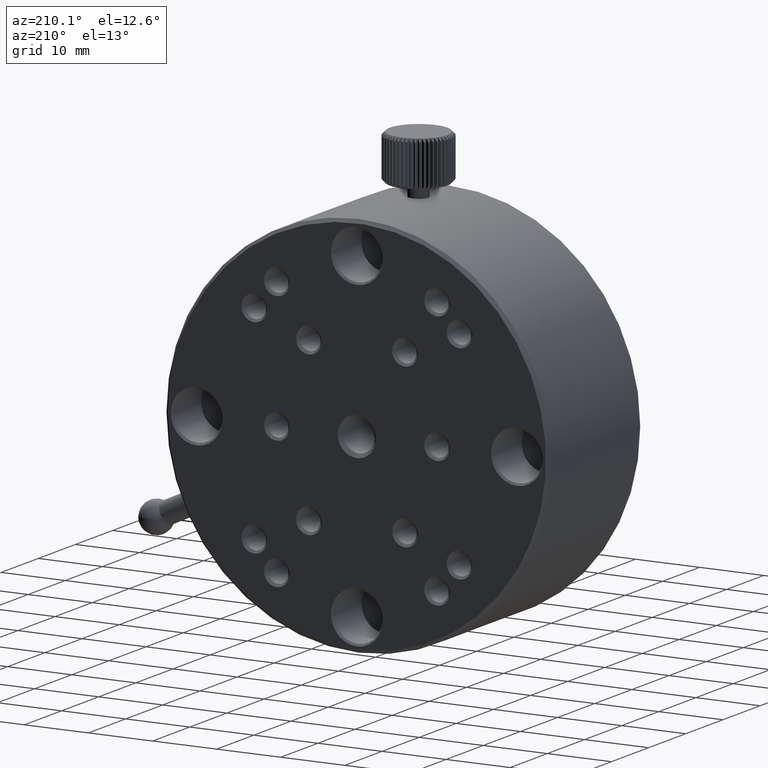
[diagram: clean part render]
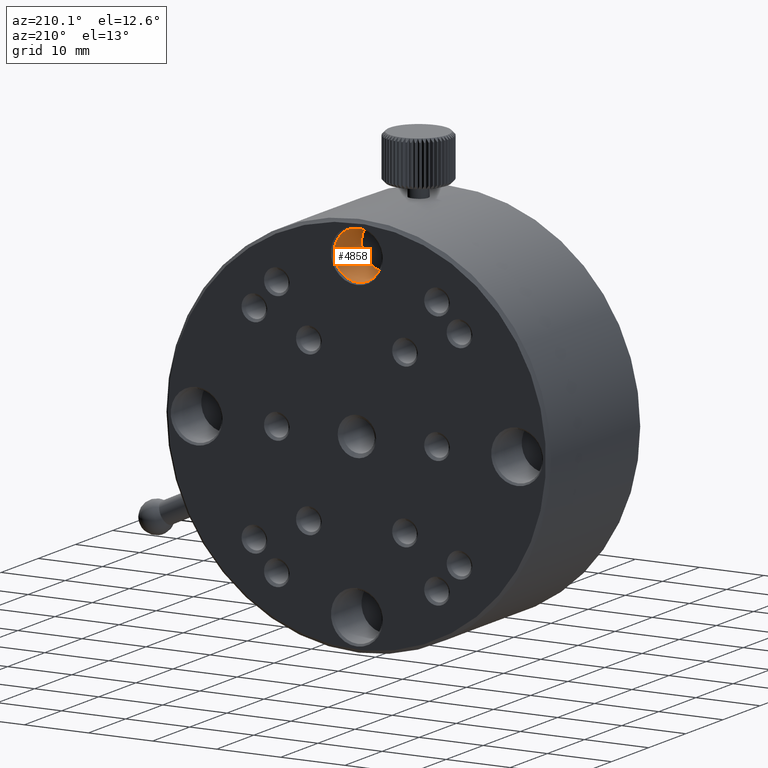
[diagram: same view with one face highlighted and labeled with its STEP entity id]
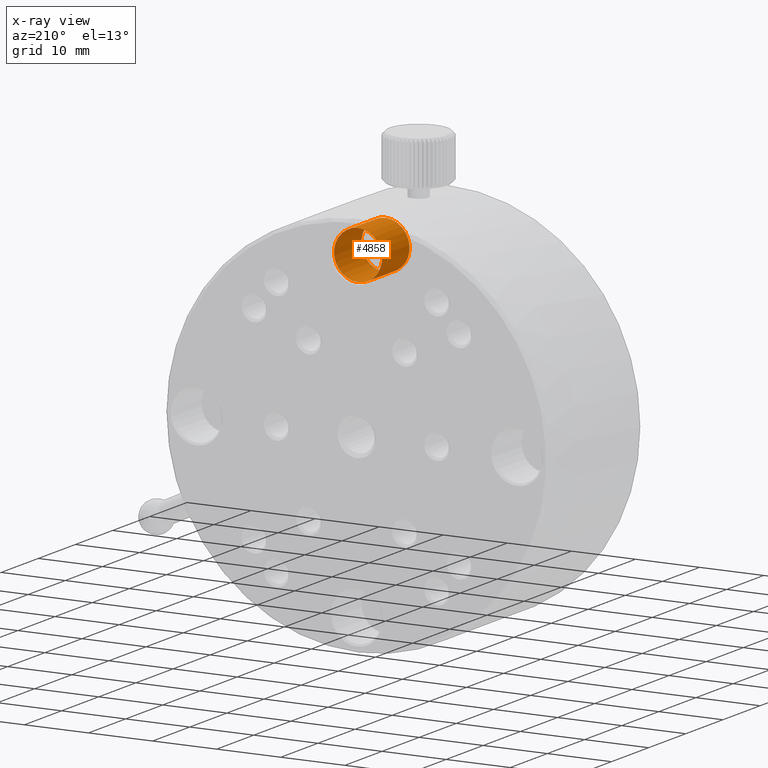
[diagram: x-ray of the same camera — body ghosted, the highlighted face saturated]
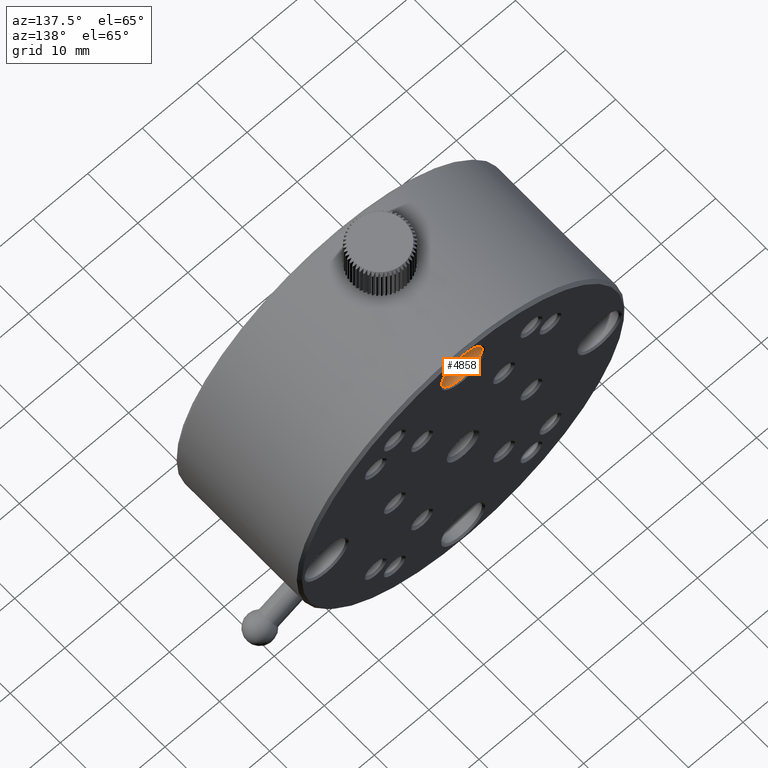
[diagram: same view with one face highlighted and labeled with its STEP entity id]
A machine part, auxiliary view. The second image highlights one B-rep face of the part: STEP entity #4858.
The next image is the same camera in x-ray: the body ghosted, the highlighted face saturated — about 0% of this face is hidden behind the body in this view.
A second angle (auxiliary view) of the same face is appended — the face is thin or edge-on in the first view.
In plain terms, the highlighted cylindrical surface (bore or boss wall) has radius 3.75 mm, axis along (0, -1, 0).
Its self-contained STEP definition (entity closure, byte-faithful):
#700 = FACE_OUTER_BOUND ( 'NONE', #2987, .T. ) ;
#891 = CARTESIAN_POINT ( 'NONE',  ( -3.469446951953609850E-15, 24.69999999999572537, 28.74999999988858690 ) ) ;
#1151 = DIRECTION ( 'NONE',  ( -0.000000000000000000, 1.000000000000000000, -0.000000000000000000 ) ) ;
#1913 = EDGE_CURVE ( 'NONE', #8188, #8188, #4010, .T. ) ;
#2522 = CIRCLE ( 'NONE', #9135, 3.750000000000000000 ) ;
#2682 = ORIENTED_EDGE ( 'NONE', *, *, #1913, .T. ) ;
#2912 = AXIS2_PLACEMENT_3D ( 'NONE', #3070, #8259, #6011 ) ;
#2987 = EDGE_LOOP ( 'NONE', ( #2682 ) ) ;
#3070 = CARTESIAN_POINT ( 'NONE',  ( -3.469446951953609850E-15, 17.00000000000000000, 25.00000000000000000 ) ) ;
#3116 = CARTESIAN_POINT ( 'NONE',  ( -3.469446951953609850E-15, 24.69999999999572537, 25.00000000000000000 ) ) ;
#4010 = CIRCLE ( 'NONE', #7082, 3.749999999888585567 ) ;
#4466 = DIRECTION ( 'NONE',  ( -0.000000000000000000, 1.000000000000000000, 0.000000000000000000 ) ) ;
#4858 = ADVANCED_FACE ( 'NONE', ( #700, #6558 ), #5964, .F. ) ;
#4945 = DIRECTION ( 'NONE',  ( 0.000000000000000000, 0.000000000000000000, -1.000000000000000000 ) ) ;
#5964 = CYLINDRICAL_SURFACE ( 'NONE', #2912, 3.750000000000000000 ) ;
#6011 = DIRECTION ( 'NONE',  ( 0.000000000000000000, 0.000000000000000000, -1.000000000000000000 ) ) ;
#6024 = VERTEX_POINT ( 'NONE', #8956 ) ;
#6558 = FACE_OUTER_BOUND ( 'NONE', #6725, .T. ) ;
#6725 = EDGE_LOOP ( 'NONE', ( #7891 ) ) ;
#7082 = AXIS2_PLACEMENT_3D ( 'NONE', #3116, #4466, #8987 ) ;
#7729 = CARTESIAN_POINT ( 'NONE',  ( -3.469446951953609850E-15, 17.30000000000000071, 25.00000000000000000 ) ) ;
#7891 = ORIENTED_EDGE ( 'NONE', *, *, #8933, .F. ) ;
#8188 = VERTEX_POINT ( 'NONE', #891 ) ;
#8259 = DIRECTION ( 'NONE',  ( 0.000000000000000000, -1.000000000000000000, 0.000000000000000000 ) ) ;
#8933 = EDGE_CURVE ( 'NONE', #6024, #6024, #2522, .T. ) ;
#8956 = CARTESIAN_POINT ( 'NONE',  ( -3.469446951953609850E-15, 17.30000000000000071, 21.25000000000000000 ) ) ;
#8987 = DIRECTION ( 'NONE',  ( 0.000000000000000000, 0.000000000000000000, 1.000000000000000000 ) ) ;
#9135 = AXIS2_PLACEMENT_3D ( 'NONE', #7729, #1151, #4945 ) ;